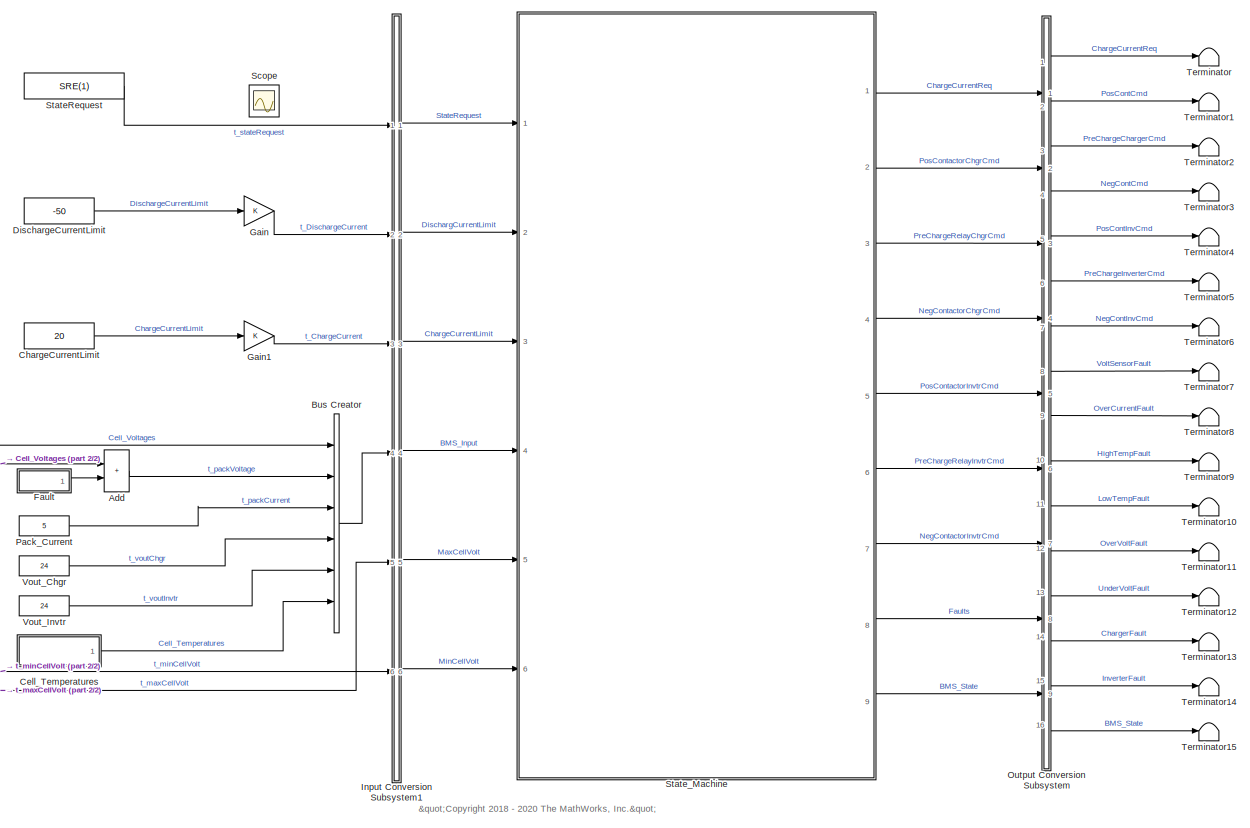
[diagram: root canvas - part 1/2, most of the canvas]
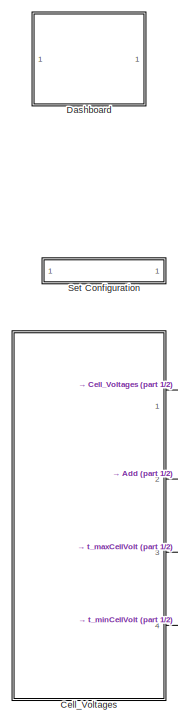
[diagram: root canvas - part 2/2, left side, full height]
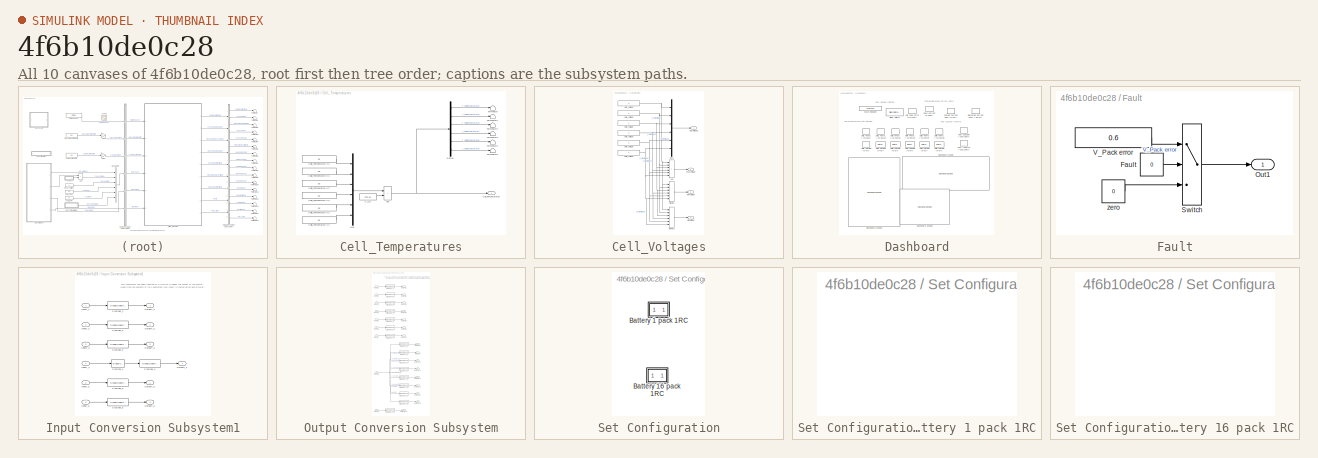
[diagram: thumbnail index - all 10 canvases of the model, root first then tree order]
MODEL slx_4f6b10de0c28
KIND model
BLOCK [Sum] Add
  IconShape = rectangular
  Ports = [2, 1]
BLOCK [BusCreator] Bus Creator
  DisplayOption = bar
  InheritFromInputs = off
  Inputs = 6
  OutDataTypeStr = Bus: BMS_Input
  Ports = [6, 1]
BLOCK [SubSystem] Cell_Temperatures
  Ports = [0, 1]
  RequestExecContextInheritance = off
BLOCK [Sum] Cell_Temperatures/Add
  IconShape = rectangular
  Ports = [2, 1]
BLOCK [Constant] Cell_Temperatures/C_2_K
  OutDataTypeStr = single
  SampleTime = 0.1
  Value = 273.15
BLOCK [Constant] Cell_Temperatures/Cell1_Temperature (C)
  OutDataTypeStr = single
  SampleTime = 0.1
  Value = 25
BLOCK [Constant] Cell_Temperatures/Cell2_Temperature (C)
  OutDataTypeStr = single
  SampleTime = 0.1
  Value = 25
BLOCK [Constant] Cell_Temperatures/Cell3_Temperature (C)
  OutDataTypeStr = single
  SampleTime = 0.1
  Value = 25
BLOCK [Constant] Cell_Temperatures/Cell4_Temperature (C)
  OutDataTypeStr = single
  SampleTime = 0.1
  Value = 25
BLOCK [Constant] Cell_Temperatures/Cell5_Temperature (C)
  OutDataTypeStr = single
  SampleTime = 0.1
  Value = 25
BLOCK [Constant] Cell_Temperatures/Cell6_Temperature (C)
  OutDataTypeStr = single
  SampleTime = 0.1
  Value = 25
BLOCK [Outport] Cell_Temperatures/Cell_Temperatures
  VectorParamsAs1DForOutWhenUnconnected = off
BLOCK [Demux] Cell_Temperatures/Demux
  Outputs = 6
  Ports = [1, 6]
BLOCK [Mux] Cell_Temperatures/Mux
  DisplayOption = bar
  Inputs = 6
  Ports = [6, 1]
BLOCK [Terminator] Cell_Temperatures/Terminator
BLOCK [Terminator] Cell_Temperatures/Terminator1
BLOCK [Terminator] Cell_Temperatures/Terminator2
BLOCK [Terminator] Cell_Temperatures/Terminator3
BLOCK [Terminator] Cell_Temperatures/Terminator4
BLOCK [Terminator] Cell_Temperatures/Terminator5
BLOCK [SubSystem] Cell_Voltages
  Ports = [0, 4]
  RequestExecContextInheritance = off
BLOCK [Sum] Cell_Voltages/Add
  IconShape = rectangular
  Inputs = 6
  Ports = [6, 1]
BLOCK [Constant] Cell_Voltages/Cell1_Voltage
  OutDataTypeStr = single
  SampleTime = 0.1
  Value = 4
BLOCK [Constant] Cell_Voltages/Cell2_Voltage
  OutDataTypeStr = single
  SampleTime = 0.1
  Value = 4
BLOCK [Constant] Cell_Voltages/Cell3_Voltage
  OutDataTypeStr = single
  SampleTime = 0.1
  Value = 4
BLOCK [Constant] Cell_Voltages/Cell4_Voltage
  OutDataTypeStr = single
  SampleTime = 0.1
  Value = 4
BLOCK [Constant] Cell_Voltages/Cell5_Voltage
  OutDataTypeStr = single
  SampleTime = 0.1
  Value = 4
BLOCK [Constant] Cell_Voltages/Cell6_Voltage
  OutDataTypeStr = single
  SampleTime = 0.1
  Value = 4
BLOCK [Outport] Cell_Voltages/Cell_Voltages
  VectorParamsAs1DForOutWhenUnconnected = off
BLOCK [Outport] Cell_Voltages/Max Voltage
  Port = 3
  VectorParamsAs1DForOutWhenUnconnected = off
BLOCK [Outport] Cell_Voltages/Min Voltage
  Port = 4
  VectorParamsAs1DForOutWhenUnconnected = off
BLOCK [MinMax] Cell_Voltages/MinMax
  Function = max
  Inputs = 6
  Ports = [6, 1]
BLOCK [MinMax] Cell_Voltages/MinMax1
  Inputs = 6
  Ports = [6, 1]
BLOCK [Mux] Cell_Voltages/Mux1
  DisplayOption = bar
  Inputs = 6
  Ports = [6, 1]
BLOCK [Outport] Cell_Voltages/Pack Voltage
  Port = 2
  VectorParamsAs1DForOutWhenUnconnected = off
BLOCK [Constant] ChargeCurrentLimit
  OutDataTypeStr = single
  SampleTime = 0.1
  Value = 20
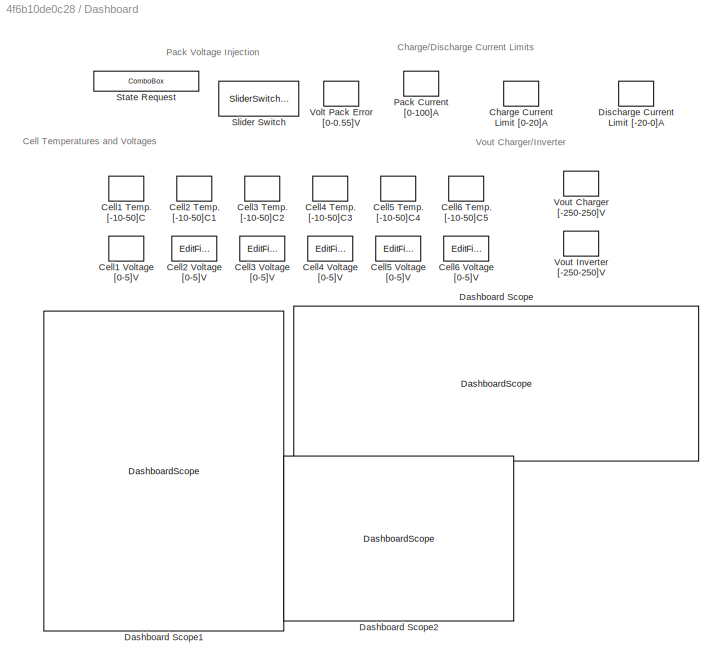
BLOCK [SubSystem] Dashboard
  Ports = []
  RequestExecContextInheritance = off
BLOCK [EditField] Dashboard/Cell1 Temp. [-10-50]C
  Alignment = Center
  LabelPosition = Hide
  ShowInitialText = on
BLOCK [EditField] Dashboard/Cell1 Voltage [0-5]V
  Alignment = Center
  LabelPosition = Hide
  ShowInitialText = on
BLOCK [EditField] Dashboard/Cell2 Temp. [-10-50]C1
  Alignment = Center
  LabelPosition = Hide
  ShowInitialText = on
BLOCK [EditField] Dashboard/Cell2 Voltage [0-5]V
  Alignment = Center
  LabelPosition = Hide
  ShowInitialText = on
BLOCK [EditField] Dashboard/Cell3 Temp. [-10-50]C2
  Alignment = Center
  LabelPosition = Hide
  ShowInitialText = on
BLOCK [EditField] Dashboard/Cell3 Voltage [0-5]V
  Alignment = Center
  LabelPosition = Hide
  ShowInitialText = on
BLOCK [EditField] Dashboard/Cell4 Temp. [-10-50]C3
  Alignment = Center
  LabelPosition = Hide
  ShowInitialText = on
BLOCK [EditField] Dashboard/Cell4 Voltage [0-5]V
  Alignment = Center
  LabelPosition = Hide
  ShowInitialText = on
BLOCK [EditField] Dashboard/Cell5 Temp. [-10-50]C4
  Alignment = Center
  LabelPosition = Hide
  ShowInitialText = on
BLOCK [EditField] Dashboard/Cell5 Voltage [0-5]V
  Alignment = Center
  LabelPosition = Hide
  ShowInitialText = on
BLOCK [EditField] Dashboard/Cell6 Temp. [-10-50]C5
  Alignment = Center
  LabelPosition = Hide
  ShowInitialText = on
BLOCK [EditField] Dashboard/Cell6 Voltage [0-5]V
  Alignment = Center
  LabelPosition = Hide
  ShowInitialText = on
BLOCK [EditField] Dashboard/Charge Current Limit [0-20]A
  Alignment = Center
  LabelPosition = Hide
  ShowInitialText = on
BLOCK [DashboardScope] Dashboard/Dashboard Scope
  ScaleAtStop = off
  TimeSpan = 50
BLOCK [DashboardScope] Dashboard/Dashboard Scope1
  TimeSpan = 50
  Ymax = 1.2
  Ymin = 0
BLOCK [DashboardScope] Dashboard/Dashboard Scope2
  TimeSpan = 50
  Ymax = 35
  Ymin = 0
BLOCK [EditField] Dashboard/Discharge Current Limit [-20-0]A
  Alignment = Center
  LabelPosition = Hide
  ShowInitialText = on
BLOCK [EditField] Dashboard/Pack Current [0-100]A
  Alignment = Center
  LabelPosition = Hide
  ShowInitialText = on
BLOCK [SliderSwitchBlock] Dashboard/Slider Switch
BLOCK [ComboBox] Dashboard/State Request
  LabelPosition = Hide
  SelectedLabel = Charging
BLOCK [EditField] Dashboard/Volt Pack Error [0-0.55]V
  Alignment = Center
  LabelPosition = Hide
  ShowInitialText = on
BLOCK [EditField] Dashboard/Vout Charger [-250-250]V
  Alignment = Center
  LabelPosition = Hide
  ShowInitialText = on
BLOCK [EditField] Dashboard/Vout Inverter [-250-250]V
  Alignment = Center
  LabelPosition = Hide
  ShowInitialText = on
BLOCK [Constant] DischargeCurrentLimit
  OutDataTypeStr = single
  SampleTime = 0.1
  Value = -50
BLOCK [SubSystem] Fault
  Ports = [0, 1]
  RequestExecContextInheritance = off
BLOCK [Constant] Fault/Fault
  LockScale = on
  OutDataTypeStr = boolean
  Value = 0
BLOCK [Outport] Fault/Out1
  VectorParamsAs1DForOutWhenUnconnected = off
BLOCK [Switch] Fault/Switch
  Criteria = u2 > Threshold
  InputSameDT = off
  SaturateOnIntegerOverflow = off
  Threshold = 0.5
BLOCK [Constant] Fault/V_Pack error
  OutDataTypeStr = single
  SampleTime = 0.1
  Value = 0.6
BLOCK [Constant] Fault/zero
  LockScale = on
  OutDataTypeStr = single
  Value = 0
BLOCK [Gain] Gain
BLOCK [Gain] Gain1
BLOCK [SubSystem] Input Conversion Subsystem1
  AttributesFormatString = %<Description>
  Description = Signal spec.\nand routing
  Permissions = ReadOnly
  PermitHierarchicalResolution = ExplicitOnly
  Ports = [6, 6]
  RequestExecContextInheritance = off
  Tag = __SLT_ICS__
  UserDataPersistent = on
BLOCK [Inport] Input Conversion Subsystem1/Inport_1
BLOCK [Inport] Input Conversion Subsystem1/Inport_2
  Port = 2
BLOCK [Inport] Input Conversion Subsystem1/Inport_3
  Port = 3
BLOCK [Inport] Input Conversion Subsystem1/Inport_4
  Port = 4
BLOCK [Inport] Input Conversion Subsystem1/Inport_5
  Port = 5
BLOCK [Inport] Input Conversion Subsystem1/Inport_6
  Port = 6
BLOCK [Outport] Input Conversion Subsystem1/Outport_1
BLOCK [Outport] Input Conversion Subsystem1/Outport_2
  Port = 2
BLOCK [Outport] Input Conversion Subsystem1/Outport_3
  Port = 3
BLOCK [Outport] Input Conversion Subsystem1/Outport_4
  Port = 4
BLOCK [Outport] Input Conversion Subsystem1/Outport_5
  Port = 5
BLOCK [Outport] Input Conversion Subsystem1/Outport_6
  Port = 6
BLOCK [SignalConversion] Input Conversion Subsystem1/SigConv_1
  ConversionOutput = Virtual bus
  OverrideOpt = off
BLOCK [SignalSpecification] Input Conversion Subsystem1/SigSpec_1
  Dimensions = [1]
  OutDataTypeStr = Enum: SRE
  SampleTime = 0.1
  SignalType = real
  VarSizeSig = No
BLOCK [SignalSpecification] Input Conversion Subsystem1/SigSpec_2
  Dimensions = [1]
  OutDataTypeStr = single
  SampleTime = 0.1
  SignalType = real
  VarSizeSig = No
BLOCK [SignalSpecification] Input Conversion Subsystem1/SigSpec_3
  Dimensions = [1]
  OutDataTypeStr = single
  SampleTime = 0.1
  SignalType = real
  VarSizeSig = No
BLOCK [SignalSpecification] Input Conversion Subsystem1/SigSpec_4
  OutDataTypeStr = Bus: BMS_Input
  SampleTime = 0.1
BLOCK [SignalSpecification] Input Conversion Subsystem1/SigSpec_5
  Dimensions = [1]
  OutDataTypeStr = single
  SampleTime = 0.1
  SignalType = real
  VarSizeSig = No
BLOCK [SignalSpecification] Input Conversion Subsystem1/SigSpec_6
  Dimensions = [1]
  OutDataTypeStr = single
  SampleTime = 0.1
  SignalType = real
  VarSizeSig = No
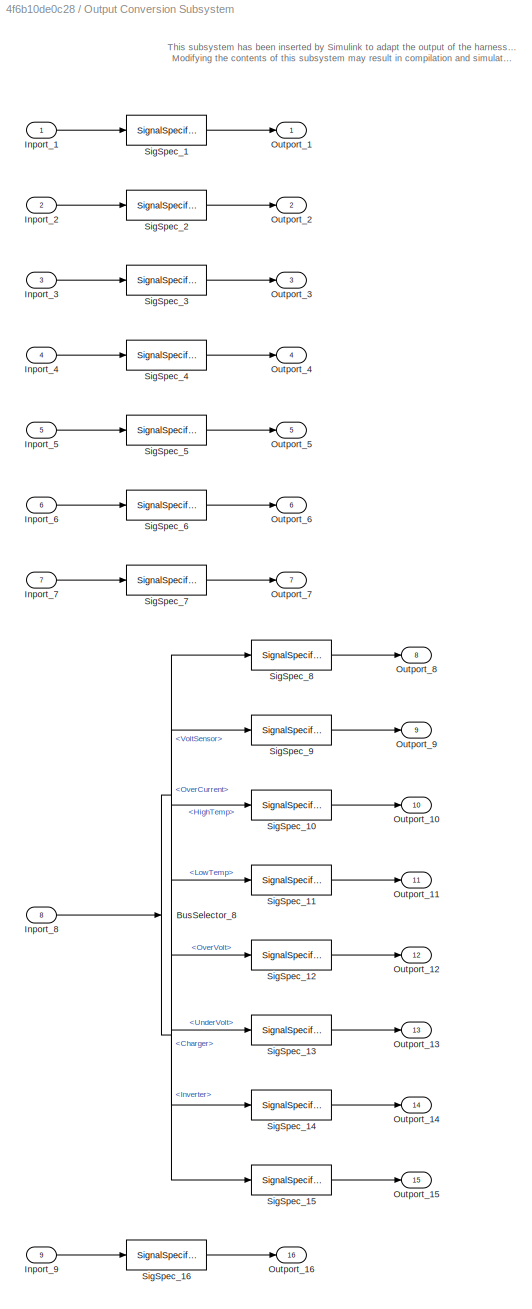
BLOCK [SubSystem] Output Conversion Subsystem
  AttributesFormatString = %<Description>
  Description = Signal spec.\nand routing
  Permissions = ReadOnly
  PermitHierarchicalResolution = ExplicitOnly
  Ports = [9, 16]
  RequestExecContextInheritance = off
  Tag = __SLT_OCS__
  UserDataPersistent = on
BLOCK [BusSelector] Output Conversion Subsystem/BusSelector_8
  OutputSignals = VoltSensor,OverCurrent,HighTemp,LowTemp,OverVolt,UnderVolt,Charger,Inverter
  Ports = [1, 8]
BLOCK [Inport] Output Conversion Subsystem/Inport_1
BLOCK [Inport] Output Conversion Subsystem/Inport_2
  Port = 2
BLOCK [Inport] Output Conversion Subsystem/Inport_3
  Port = 3
BLOCK [Inport] Output Conversion Subsystem/Inport_4
  Port = 4
BLOCK [Inport] Output Conversion Subsystem/Inport_5
  Port = 5
BLOCK [Inport] Output Conversion Subsystem/Inport_6
  Port = 6
BLOCK [Inport] Output Conversion Subsystem/Inport_7
  Port = 7
BLOCK [Inport] Output Conversion Subsystem/Inport_8
  Port = 8
BLOCK [Inport] Output Conversion Subsystem/Inport_9
  Port = 9
BLOCK [Outport] Output Conversion Subsystem/Outport_1
BLOCK [Outport] Output Conversion Subsystem/Outport_10
  Port = 10
BLOCK [Outport] Output Conversion Subsystem/Outport_11
  Port = 11
BLOCK [Outport] Output Conversion Subsystem/Outport_12
  Port = 12
BLOCK [Outport] Output Conversion Subsystem/Outport_13
  Port = 13
BLOCK [Outport] Output Conversion Subsystem/Outport_14
  Port = 14
BLOCK [Outport] Output Conversion Subsystem/Outport_15
  Port = 15
BLOCK [Outport] Output Conversion Subsystem/Outport_16
  Port = 16
BLOCK [Outport] Output Conversion Subsystem/Outport_2
  Port = 2
BLOCK [Outport] Output Conversion Subsystem/Outport_3
  Port = 3
BLOCK [Outport] Output Conversion Subsystem/Outport_4
  Port = 4
BLOCK [Outport] Output Conversion Subsystem/Outport_5
  Port = 5
BLOCK [Outport] Output Conversion Subsystem/Outport_6
  Port = 6
BLOCK [Outport] Output Conversion Subsystem/Outport_7
  Port = 7
BLOCK [Outport] Output Conversion Subsystem/Outport_8
  Port = 8
BLOCK [Outport] Output Conversion Subsystem/Outport_9
  Port = 9
BLOCK [SignalSpecification] Output Conversion Subsystem/SigSpec_1
  Dimensions = [1]
  OutDataTypeStr = single
  SampleTime = 0.1
  SignalType = real
  VarSizeSig = No
BLOCK [SignalSpecification] Output Conversion Subsystem/SigSpec_10
  Dimensions = [1]
  OutDataTypeStr = boolean
  SampleTime = 0.1
  SignalType = real
  VarSizeSig = No
BLOCK [SignalSpecification] Output Conversion Subsystem/SigSpec_11
  Dimensions = [1]
  OutDataTypeStr = boolean
  SampleTime = 0.1
  SignalType = real
  VarSizeSig = No
BLOCK [SignalSpecification] Output Conversion Subsystem/SigSpec_12
  Dimensions = [1]
  OutDataTypeStr = boolean
  SampleTime = 0.1
  SignalType = real
  VarSizeSig = No
BLOCK [SignalSpecification] Output Conversion Subsystem/SigSpec_13
  Dimensions = [1]
  OutDataTypeStr = boolean
  SampleTime = 0.1
  SignalType = real
  VarSizeSig = No
BLOCK [SignalSpecification] Output Conversion Subsystem/SigSpec_14
  Dimensions = [1]
  OutDataTypeStr = boolean
  SampleTime = 0.1
  SignalType = real
  VarSizeSig = No
BLOCK [SignalSpecification] Output Conversion Subsystem/SigSpec_15
  Dimensions = [1]
  OutDataTypeStr = boolean
  SampleTime = 0.1
  SignalType = real
  VarSizeSig = No
BLOCK [SignalSpecification] Output Conversion Subsystem/SigSpec_16
  Dimensions = [1]
  OutDataTypeStr = Enum: BMS_State_Enum
  SampleTime = 0.1
  SignalType = real
  VarSizeSig = No
BLOCK [SignalSpecification] Output Conversion Subsystem/SigSpec_2
  Dimensions = [1]
  OutDataTypeStr = boolean
  SampleTime = 0.1
  SignalType = real
  VarSizeSig = No
BLOCK [SignalSpecification] Output Conversion Subsystem/SigSpec_3
  Dimensions = [1]
  OutDataTypeStr = boolean
  SampleTime = 0.1
  SignalType = real
  VarSizeSig = No
BLOCK [SignalSpecification] Output Conversion Subsystem/SigSpec_4
  Dimensions = [1]
  OutDataTypeStr = boolean
  SampleTime = 0.1
  SignalType = real
  VarSizeSig = No
BLOCK [SignalSpecification] Output Conversion Subsystem/SigSpec_5
  Dimensions = [1]
  OutDataTypeStr = boolean
  SampleTime = 0.1
  SignalType = real
  VarSizeSig = No
BLOCK [SignalSpecification] Output Conversion Subsystem/SigSpec_6
  Dimensions = [1]
  OutDataTypeStr = boolean
  SampleTime = 0.1
  SignalType = real
  VarSizeSig = No
BLOCK [SignalSpecification] Output Conversion Subsystem/SigSpec_7
  Dimensions = [1]
  OutDataTypeStr = boolean
  SampleTime = 0.1
  SignalType = real
  VarSizeSig = No
BLOCK [SignalSpecification] Output Conversion Subsystem/SigSpec_8
  Dimensions = [1]
  OutDataTypeStr = boolean
  SampleTime = 0.1
  SignalType = real
  VarSizeSig = No
BLOCK [SignalSpecification] Output Conversion Subsystem/SigSpec_9
  Dimensions = [1]
  OutDataTypeStr = boolean
  SampleTime = 0.1
  SignalType = real
  VarSizeSig = No
BLOCK [Constant] Pack_Current
  OutDataTypeStr = single
  SampleTime = 0.1
  Value = 5
BLOCK [Scope] Scope
  Floating = off
  IOType = viewer
  NumInputPorts = 1
  Ports = []
  ScopeSpecificationString = Simulink.scopes.TimeScopeBlockCfg('CurrentConfiguration', extmgr.ConfigurationSet(extmgr.Configuration('Core','General UI',true),extmgr.Configuration('Core','Source UI',true),extmgr.Configuration('Sources','WiredSimulink',true),extmgr.Configuration('Visuals','Time Domain',true,'SerializedDisplays',{struct('MinYLimReal','-1.00000','MaxYLimReal','1.00000','YLabelReal','','MinYLimMag','0.00000','MaxY...<+11854ch>
BLOCK [SubSystem] Set Configuration
  Ports = []
  RequestExecContextInheritance = off
BLOCK [SubSystem] Set Configuration/Battery 1 pack 1RC
  OpenFcn = SharedDictionaryObj = Simulink.data.dictionary.open('Shared_DD.sldd');\ntry removeDataSource(SharedDictionaryObj,'Battery_1Pack_1RC.sldd')\nend\ntry removeDataSource(SharedDictionaryObj,'Battery_16Packs_1RC.sldd')\nend\naddDataSource(SharedDictionaryObj,'Battery_1Pack_1RC.sldd')
  Ports = []
  RequestExecContextInheritance = off
BLOCK [SubSystem] Set Configuration/Battery 16 pack 1RC
  OpenFcn = SharedDictionaryObj = Simulink.data.dictionary.open('Shared_DD.sldd');\ntry removeDataSource(SharedDictionaryObj,'Battery_1Pack_1RC.sldd')\nend\ntry removeDataSource(SharedDictionaryObj,'Battery_16Packs_1RC.sldd')\nend\naddDataSource(SharedDictionaryObj,'Battery_16Packs_1RC.sldd')
  Ports = []
  RequestExecContextInheritance = off
BLOCK [Constant] StateRequest
  OutDataTypeStr = Enum: SRE
  SampleTime = 0.1
  Value = SRE(1)
BLOCK [ModelReference] State_Machine
  ModelNameDialog = State_Machine
  ModelReferenceVersion = 1.671
  Ports = [6, 9]
BLOCK [Terminator] Terminator
BLOCK [Terminator] Terminator1
BLOCK [Terminator] Terminator10
BLOCK [Terminator] Terminator11
BLOCK [Terminator] Terminator12
BLOCK [Terminator] Terminator13
BLOCK [Terminator] Terminator14
BLOCK [Terminator] Terminator15
BLOCK [Terminator] Terminator2
BLOCK [Terminator] Terminator3
BLOCK [Terminator] Terminator4
BLOCK [Terminator] Terminator5
BLOCK [Terminator] Terminator6
BLOCK [Terminator] Terminator7
BLOCK [Terminator] Terminator8
BLOCK [Terminator] Terminator9
BLOCK [Constant] Vout_Chgr
  OutDataTypeStr = single
  SampleTime = 0.1
  Value = 24
BLOCK [Constant] Vout_Invtr
  OutDataTypeStr = single
  SampleTime = 0.1
  Value = 24
ANNOTATION (root): "<copyright redacted>
ANNOTATION Dashboard: Cell Temperatures and Voltages
ANNOTATION Dashboard: Charge/Discharge Current Limits
ANNOTATION Dashboard: Pack Voltage Injection
ANNOTATION Dashboard: Vout Charger/Inverter
ANNOTATION Input Conversion Subsystem1: This subsystem has been inserted by Simulink to adapt the output of the source blocks to the interface required by the harnessed component. Modifying the contents of this subsystem may result in compilation and simulation failure.
ANNOTATION Output Conversion Subsystem: This subsystem has been inserted by Simulink to adapt the output of the harnessed component to the interface required by the sink blocks. Modifying the contents of this subsystem may result in compilation and simulation failure.
LINE Add:1 -> Bus Creator:2
LINE Bus Creator:1 -> Input Conversion Subsystem1:4
NET Cell_Temperatures/Add:1 -> Cell_Temperatures/Cell_Temperatures:1, Cell_Temperatures/Demux:1
LINE Cell_Temperatures/C_2_K:1 -> Cell_Temperatures/Add:2
LINE Cell_Temperatures/Cell1_Temperature (C):1 -> Cell_Temperatures/Mux:1
LINE Cell_Temperatures/Cell2_Temperature (C):1 -> Cell_Temperatures/Mux:2
LINE Cell_Temperatures/Cell3_Temperature (C):1 -> Cell_Temperatures/Mux:3
LINE Cell_Temperatures/Cell4_Temperature (C):1 -> Cell_Temperatures/Mux:4
LINE Cell_Temperatures/Cell5_Temperature (C):1 -> Cell_Temperatures/Mux:5
LINE Cell_Temperatures/Cell6_Temperature (C):1 -> Cell_Temperatures/Mux:6
LINE Cell_Temperatures/Demux:1 -> Cell_Temperatures/Terminator:1
LINE Cell_Temperatures/Demux:2 -> Cell_Temperatures/Terminator1:1
LINE Cell_Temperatures/Demux:3 -> Cell_Temperatures/Terminator2:1
LINE Cell_Temperatures/Demux:4 -> Cell_Temperatures/Terminator3:1
LINE Cell_Temperatures/Demux:5 -> Cell_Temperatures/Terminator4:1
LINE Cell_Temperatures/Demux:6 -> Cell_Temperatures/Terminator5:1
LINE Cell_Temperatures/Mux:1 -> Cell_Temperatures/Add:1
LINE Cell_Temperatures:1 -> Bus Creator:6
LINE Cell_Voltages/Add:1 -> Cell_Voltages/Pack Voltage:1
NET Cell_Voltages/Cell1_Voltage:1 -> Cell_Voltages/Add:1, Cell_Voltages/MinMax1:1, Cell_Voltages/MinMax:1, Cell_Voltages/Mux1:1
NET Cell_Voltages/Cell2_Voltage:1 -> Cell_Voltages/Add:2, Cell_Voltages/MinMax1:2, Cell_Voltages/MinMax:2, Cell_Voltages/Mux1:2
NET Cell_Voltages/Cell3_Voltage:1 -> Cell_Voltages/Add:3, Cell_Voltages/MinMax1:3, Cell_Voltages/MinMax:3, Cell_Voltages/Mux1:3
NET Cell_Voltages/Cell4_Voltage:1 -> Cell_Voltages/Add:4, Cell_Voltages/MinMax1:4, Cell_Voltages/MinMax:4, Cell_Voltages/Mux1:4
NET Cell_Voltages/Cell5_Voltage:1 -> Cell_Voltages/Add:5, Cell_Voltages/MinMax1:5, Cell_Voltages/MinMax:5, Cell_Voltages/Mux1:5
NET Cell_Voltages/Cell6_Voltage:1 -> Cell_Voltages/Add:6, Cell_Voltages/MinMax1:6, Cell_Voltages/MinMax:6, Cell_Voltages/Mux1:6
LINE Cell_Voltages/MinMax1:1 -> Cell_Voltages/Min Voltage:1
LINE Cell_Voltages/MinMax:1 -> Cell_Voltages/Max Voltage:1
LINE Cell_Voltages/Mux1:1 -> Cell_Voltages/Cell_Voltages:1
LINE Cell_Voltages:1 -> Bus Creator:1
LINE Cell_Voltages:2 -> Add:1
LINE Cell_Voltages:3 -> Input Conversion Subsystem1:5
LINE Cell_Voltages:4 -> Input Conversion Subsystem1:6
LINE ChargeCurrentLimit:1 -> Gain1:1
LINE DischargeCurrentLimit:1 -> Gain:1
LINE Fault/Fault:1 -> Fault/Switch:2
LINE Fault/Switch:1 -> Fault/Out1:1
LINE Fault/V_Pack error:1 -> Fault/Switch:1
LINE Fault/zero:1 -> Fault/Switch:3
LINE Fault:1 -> Add:2
LINE Gain1:1 -> Input Conversion Subsystem1:3
LINE Gain:1 -> Input Conversion Subsystem1:2
LINE Input Conversion Subsystem1/Inport_1:1 -> Input Conversion Subsystem1/SigSpec_1:1
LINE Input Conversion Subsystem1/Inport_2:1 -> Input Conversion Subsystem1/SigSpec_2:1
LINE Input Conversion Subsystem1/Inport_3:1 -> Input Conversion Subsystem1/SigSpec_3:1
LINE Input Conversion Subsystem1/Inport_4:1 -> Input Conversion Subsystem1/SigConv_1:1
LINE Input Conversion Subsystem1/Inport_5:1 -> Input Conversion Subsystem1/SigSpec_5:1
LINE Input Conversion Subsystem1/Inport_6:1 -> Input Conversion Subsystem1/SigSpec_6:1
LINE Input Conversion Subsystem1/SigConv_1:1 -> Input Conversion Subsystem1/SigSpec_4:1
LINE Input Conversion Subsystem1/SigSpec_1:1 -> Input Conversion Subsystem1/Outport_1:1
LINE Input Conversion Subsystem1/SigSpec_2:1 -> Input Conversion Subsystem1/Outport_2:1
LINE Input Conversion Subsystem1/SigSpec_3:1 -> Input Conversion Subsystem1/Outport_3:1
LINE Input Conversion Subsystem1/SigSpec_4:1 -> Input Conversion Subsystem1/Outport_4:1
LINE Input Conversion Subsystem1/SigSpec_5:1 -> Input Conversion Subsystem1/Outport_5:1
LINE Input Conversion Subsystem1/SigSpec_6:1 -> Input Conversion Subsystem1/Outport_6:1
LINE Input Conversion Subsystem1:1 -> State_Machine:1
LINE Input Conversion Subsystem1:2 -> State_Machine:2
LINE Input Conversion Subsystem1:3 -> State_Machine:3
LINE Input Conversion Subsystem1:4 -> State_Machine:4
LINE Input Conversion Subsystem1:5 -> State_Machine:5
LINE Input Conversion Subsystem1:6 -> State_Machine:6
LINE Output Conversion Subsystem/BusSelector_8:1 -> Output Conversion Subsystem/SigSpec_8:1
LINE Output Conversion Subsystem/BusSelector_8:2 -> Output Conversion Subsystem/SigSpec_9:1
LINE Output Conversion Subsystem/BusSelector_8:3 -> Output Conversion Subsystem/SigSpec_10:1
LINE Output Conversion Subsystem/BusSelector_8:4 -> Output Conversion Subsystem/SigSpec_11:1
LINE Output Conversion Subsystem/BusSelector_8:5 -> Output Conversion Subsystem/SigSpec_12:1
LINE Output Conversion Subsystem/BusSelector_8:6 -> Output Conversion Subsystem/SigSpec_13:1
LINE Output Conversion Subsystem/BusSelector_8:7 -> Output Conversion Subsystem/SigSpec_14:1
LINE Output Conversion Subsystem/BusSelector_8:8 -> Output Conversion Subsystem/SigSpec_15:1
LINE Output Conversion Subsystem/Inport_1:1 -> Output Conversion Subsystem/SigSpec_1:1
LINE Output Conversion Subsystem/Inport_2:1 -> Output Conversion Subsystem/SigSpec_2:1
LINE Output Conversion Subsystem/Inport_3:1 -> Output Conversion Subsystem/SigSpec_3:1
LINE Output Conversion Subsystem/Inport_4:1 -> Output Conversion Subsystem/SigSpec_4:1
LINE Output Conversion Subsystem/Inport_5:1 -> Output Conversion Subsystem/SigSpec_5:1
LINE Output Conversion Subsystem/Inport_6:1 -> Output Conversion Subsystem/SigSpec_6:1
LINE Output Conversion Subsystem/Inport_7:1 -> Output Conversion Subsystem/SigSpec_7:1
LINE Output Conversion Subsystem/Inport_8:1 -> Output Conversion Subsystem/BusSelector_8:1
LINE Output Conversion Subsystem/Inport_9:1 -> Output Conversion Subsystem/SigSpec_16:1
LINE Output Conversion Subsystem/SigSpec_10:1 -> Output Conversion Subsystem/Outport_10:1
LINE Output Conversion Subsystem/SigSpec_11:1 -> Output Conversion Subsystem/Outport_11:1
LINE Output Conversion Subsystem/SigSpec_12:1 -> Output Conversion Subsystem/Outport_12:1
LINE Output Conversion Subsystem/SigSpec_13:1 -> Output Conversion Subsystem/Outport_13:1
LINE Output Conversion Subsystem/SigSpec_14:1 -> Output Conversion Subsystem/Outport_14:1
LINE Output Conversion Subsystem/SigSpec_15:1 -> Output Conversion Subsystem/Outport_15:1
LINE Output Conversion Subsystem/SigSpec_16:1 -> Output Conversion Subsystem/Outport_16:1
LINE Output Conversion Subsystem/SigSpec_1:1 -> Output Conversion Subsystem/Outport_1:1
LINE Output Conversion Subsystem/SigSpec_2:1 -> Output Conversion Subsystem/Outport_2:1
LINE Output Conversion Subsystem/SigSpec_3:1 -> Output Conversion Subsystem/Outport_3:1
LINE Output Conversion Subsystem/SigSpec_4:1 -> Output Conversion Subsystem/Outport_4:1
LINE Output Conversion Subsystem/SigSpec_5:1 -> Output Conversion Subsystem/Outport_5:1
LINE Output Conversion Subsystem/SigSpec_6:1 -> Output Conversion Subsystem/Outport_6:1
LINE Output Conversion Subsystem/SigSpec_7:1 -> Output Conversion Subsystem/Outport_7:1
LINE Output Conversion Subsystem/SigSpec_8:1 -> Output Conversion Subsystem/Outport_8:1
LINE Output Conversion Subsystem/SigSpec_9:1 -> Output Conversion Subsystem/Outport_9:1
LINE Output Conversion Subsystem:1 -> Terminator:1
LINE Output Conversion Subsystem:10 -> Terminator9:1
LINE Output Conversion Subsystem:11 -> Terminator10:1
LINE Output Conversion Subsystem:12 -> Terminator11:1
LINE Output Conversion Subsystem:13 -> Terminator12:1
LINE Output Conversion Subsystem:14 -> Terminator13:1
LINE Output Conversion Subsystem:15 -> Terminator14:1
LINE Output Conversion Subsystem:16 -> Terminator15:1
LINE Output Conversion Subsystem:2 -> Terminator1:1
LINE Output Conversion Subsystem:3 -> Terminator2:1
LINE Output Conversion Subsystem:4 -> Terminator3:1
LINE Output Conversion Subsystem:5 -> Terminator4:1
LINE Output Conversion Subsystem:6 -> Terminator5:1
LINE Output Conversion Subsystem:7 -> Terminator6:1
LINE Output Conversion Subsystem:8 -> Terminator7:1
LINE Output Conversion Subsystem:9 -> Terminator8:1
LINE Pack_Current:1 -> Bus Creator:3
LINE StateRequest:1 -> Input Conversion Subsystem1:1
LINE State_Machine:1 -> Output Conversion Subsystem:1
LINE State_Machine:2 -> Output Conversion Subsystem:2
LINE State_Machine:3 -> Output Conversion Subsystem:3
LINE State_Machine:4 -> Output Conversion Subsystem:4
LINE State_Machine:5 -> Output Conversion Subsystem:5
LINE State_Machine:6 -> Output Conversion Subsystem:6
LINE State_Machine:7 -> Output Conversion Subsystem:7
LINE State_Machine:8 -> Output Conversion Subsystem:8
LINE State_Machine:9 -> Output Conversion Subsystem:9
LINE Vout_Chgr:1 -> Bus Creator:4
LINE Vout_Invtr:1 -> Bus Creator:5
note: NET lines group one-source signal fan-out (src -> all destinations, sorted); 1:1 wires keep LINE
